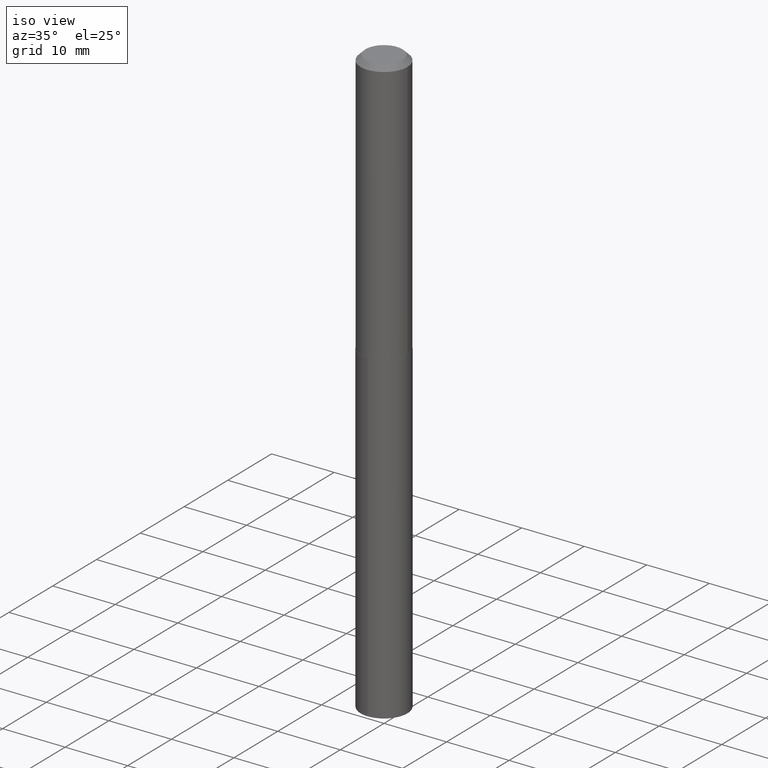
[diagram: clean part render]
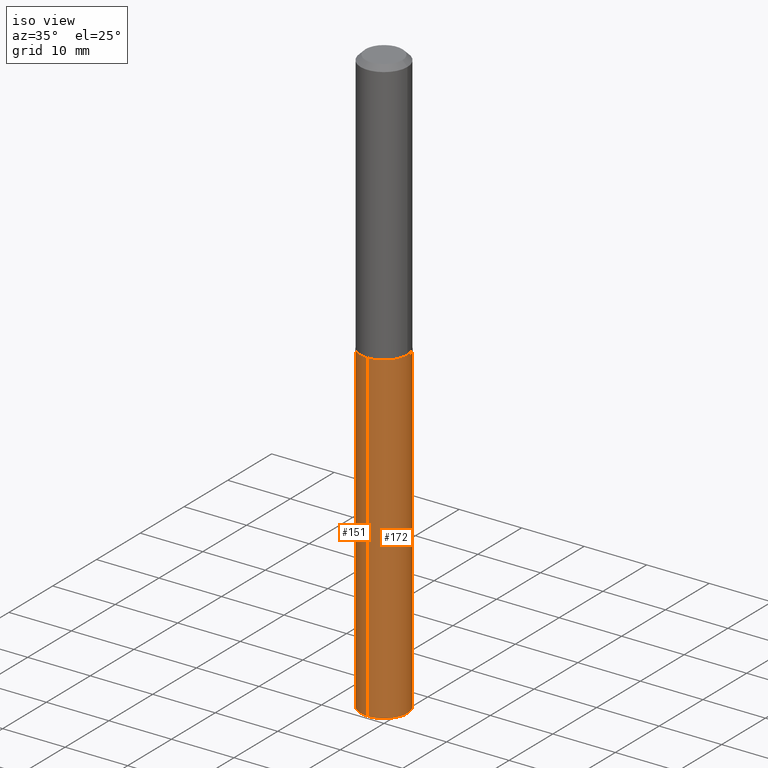
[diagram: same view with one multi-face feature highlighted, each face labeled with its STEP entity id]
A machine part, iso view. The highlighted faces form ONE feature: a constant-radius fillet chain: 2 tangent blend faces with common blend radius 3.7465 mm. The faces share edges in the B-rep.
Their STEP definitions:
[1] entity #151 (Cylinder):
#7 = FACE_OUTER_BOUND ( 'NONE', #385, .T. ) ;
#8 = CIRCLE ( 'NONE', #17, 0.1474999999999999922 ) ;
#17 = AXIS2_PLACEMENT_3D ( 'NONE', #321, #230, #45 ) ;
#20 = LINE ( 'NONE', #378, #369 ) ;
#28 = CYLINDRICAL_SURFACE ( 'NONE', #380, 0.1474999999999999922 ) ;
#36 = VECTOR ( 'NONE', #334, 39.37007874015748143 ) ;
#39 = DIRECTION ( 'NONE',  ( -2.445535589774475660E-29, 3.491385700942126033E-15, 1.000000000000000000 ) ) ;
#42 = CIRCLE ( 'NONE', #226, 0.1474999999999999922 ) ;
#45 = DIRECTION ( 'NONE',  ( -6.982962677686265922E-15, -1.000000000000000000, 3.704200669375272254E-15 ) ) ;
#70 = VERTEX_POINT ( 'NONE', #204 ) ;
#93 = CARTESIAN_POINT ( 'NONE',  ( 4.083932906329178363E-29, -5.830773835868053845E-15, -1.670000000000000151 ) ) ;
#150 = DIRECTION ( 'NONE',  ( -2.445535589774475660E-29, 3.491385700942126033E-15, 1.000000000000000000 ) ) ;
#151 = ADVANCED_FACE ( 'NONE', ( #7 ), #28, .T. ) ;
#162 = DIRECTION ( 'NONE',  ( -6.982962677686265922E-15, -1.000000000000000000, 3.704200669375272254E-15 ) ) ;
#193 = EDGE_CURVE ( 'NONE', #70, #315, #240, .T. ) ;
#197 = ORIENTED_EDGE ( 'NONE', *, *, #305, .F. ) ;
#204 = CARTESIAN_POINT ( 'NONE',  ( -1.029986994958633857E-15, -0.1475000000000130096, -3.710477494116409147 ) ) ;
#226 = AXIS2_PLACEMENT_3D ( 'NONE', #313, #39, #162 ) ;
#227 = DIRECTION ( 'NONE',  ( -2.445535589774475380E-29, 3.491385700942126427E-15, 1.000000000000000000 ) ) ;
#230 = DIRECTION ( 'NONE',  ( -2.445535589774475660E-29, 3.491385700942126033E-15, 1.000000000000000000 ) ) ;
#240 = LINE ( 'NONE', #360, #36 ) ;
#252 = ORIENTED_EDGE ( 'NONE', *, *, #193, .T. ) ;
#259 = ORIENTED_EDGE ( 'NONE', *, *, #285, .T. ) ;
#285 = EDGE_CURVE ( 'NONE', #317, #70, #42, .T. ) ;
#288 = CARTESIAN_POINT ( 'NONE',  ( -1.029986994958683358E-15, -0.1475000000000058209, -1.669999999999999707 ) ) ;
#294 = CARTESIAN_POINT ( 'NONE',  ( 1.048050535246238832E-15, 0.1474999999999941636, -1.670000000000000817 ) ) ;
#296 = ORIENTED_EDGE ( 'NONE', *, *, #358, .F. ) ;
#305 = EDGE_CURVE ( 'NONE', #317, #372, #20, .T. ) ;
#313 = CARTESIAN_POINT ( 'NONE',  ( 9.073993238324695790E-29, -1.295486778192030697E-14, -3.710477494116409591 ) ) ;
#315 = VERTEX_POINT ( 'NONE', #288 ) ;
#316 = CARTESIAN_POINT ( 'NONE',  ( 1.048050535246238832E-15, 0.1474999999999870859, -3.710477494116410480 ) ) ;
#317 = VERTEX_POINT ( 'NONE', #316 ) ;
#321 = CARTESIAN_POINT ( 'NONE',  ( 4.083932906329178363E-29, -5.830773835868053845E-15, -1.670000000000000151 ) ) ;
#334 = DIRECTION ( 'NONE',  ( -2.445535589774475380E-29, 3.491385700942126427E-15, 1.000000000000000000 ) ) ;
#358 = EDGE_CURVE ( 'NONE', #372, #315, #8, .T. ) ;
#360 = CARTESIAN_POINT ( 'NONE',  ( -1.029986994958683358E-15, -0.1475000000000058209, -1.669999999999999707 ) ) ;
#369 = VECTOR ( 'NONE', #227, 39.37007874015748143 ) ;
#372 = VERTEX_POINT ( 'NONE', #294 ) ;
#378 = CARTESIAN_POINT ( 'NONE',  ( 1.048050535246188542E-15, 0.1474999999999941636, -1.670000000000000817 ) ) ;
#380 = AXIS2_PLACEMENT_3D ( 'NONE', #93, #150, #390 ) ;
#385 = EDGE_LOOP ( 'NONE', ( #197, #259, #252, #296 ) ) ;
#390 = DIRECTION ( 'NONE',  ( -6.982962677686265922E-15, -1.000000000000000000, 3.704200669375272254E-15 ) ) ;
[2] entity #172 (Cylinder):
#15 = ORIENTED_EDGE ( 'NONE', *, *, #305, .T. ) ;
#20 = LINE ( 'NONE', #378, #369 ) ;
#36 = VECTOR ( 'NONE', #334, 39.37007874015748143 ) ;
#52 = DIRECTION ( 'NONE',  ( -2.445535589774475660E-29, 3.491385700942126033E-15, 1.000000000000000000 ) ) ;
#66 = CIRCLE ( 'NONE', #278, 0.1474999999999999922 ) ;
#70 = VERTEX_POINT ( 'NONE', #204 ) ;
#73 = EDGE_LOOP ( 'NONE', ( #76, #15, #219, #355 ) ) ;
#75 = EDGE_CURVE ( 'NONE', #70, #317, #66, .T. ) ;
#76 = ORIENTED_EDGE ( 'NONE', *, *, #75, .T. ) ;
#84 = CARTESIAN_POINT ( 'NONE',  ( 4.083932906329178363E-29, -5.830773835868053845E-15, -1.670000000000000151 ) ) ;
#97 = DIRECTION ( 'NONE',  ( -2.445535589774475660E-29, 3.491385700942126033E-15, 1.000000000000000000 ) ) ;
#123 = CARTESIAN_POINT ( 'NONE',  ( 4.083932906329178363E-29, -5.830773835868053845E-15, -1.670000000000000151 ) ) ;
#142 = AXIS2_PLACEMENT_3D ( 'NONE', #84, #97, #214 ) ;
#169 = CIRCLE ( 'NONE', #287, 0.1474999999999999922 ) ;
#172 = ADVANCED_FACE ( 'NONE', ( #244 ), #362, .T. ) ;
#177 = EDGE_CURVE ( 'NONE', #315, #372, #169, .T. ) ;
#178 = DIRECTION ( 'NONE',  ( -6.982962677686265922E-15, -1.000000000000000000, 3.704200669375272254E-15 ) ) ;
#193 = EDGE_CURVE ( 'NONE', #70, #315, #240, .T. ) ;
#204 = CARTESIAN_POINT ( 'NONE',  ( -1.029986994958633857E-15, -0.1475000000000130096, -3.710477494116409147 ) ) ;
#212 = DIRECTION ( 'NONE',  ( -2.445535589774475660E-29, 3.491385700942126033E-15, 1.000000000000000000 ) ) ;
#214 = DIRECTION ( 'NONE',  ( -6.982962677686265922E-15, -1.000000000000000000, 3.704200669375272254E-15 ) ) ;
#219 = ORIENTED_EDGE ( 'NONE', *, *, #177, .F. ) ;
#227 = DIRECTION ( 'NONE',  ( -2.445535589774475380E-29, 3.491385700942126427E-15, 1.000000000000000000 ) ) ;
#240 = LINE ( 'NONE', #360, #36 ) ;
#244 = FACE_OUTER_BOUND ( 'NONE', #73, .T. ) ;
#278 = AXIS2_PLACEMENT_3D ( 'NONE', #324, #52, #178 ) ;
#287 = AXIS2_PLACEMENT_3D ( 'NONE', #123, #212, #306 ) ;
#288 = CARTESIAN_POINT ( 'NONE',  ( -1.029986994958683358E-15, -0.1475000000000058209, -1.669999999999999707 ) ) ;
#294 = CARTESIAN_POINT ( 'NONE',  ( 1.048050535246238832E-15, 0.1474999999999941636, -1.670000000000000817 ) ) ;
#305 = EDGE_CURVE ( 'NONE', #317, #372, #20, .T. ) ;
#306 = DIRECTION ( 'NONE',  ( -6.982962677686265922E-15, -1.000000000000000000, 3.704200669375272254E-15 ) ) ;
#315 = VERTEX_POINT ( 'NONE', #288 ) ;
#316 = CARTESIAN_POINT ( 'NONE',  ( 1.048050535246238832E-15, 0.1474999999999870859, -3.710477494116410480 ) ) ;
#317 = VERTEX_POINT ( 'NONE', #316 ) ;
#324 = CARTESIAN_POINT ( 'NONE',  ( 9.073993238324695790E-29, -1.295486778192030697E-14, -3.710477494116409591 ) ) ;
#334 = DIRECTION ( 'NONE',  ( -2.445535589774475380E-29, 3.491385700942126427E-15, 1.000000000000000000 ) ) ;
#355 = ORIENTED_EDGE ( 'NONE', *, *, #193, .F. ) ;
#360 = CARTESIAN_POINT ( 'NONE',  ( -1.029986994958683358E-15, -0.1475000000000058209, -1.669999999999999707 ) ) ;
#362 = CYLINDRICAL_SURFACE ( 'NONE', #142, 0.1474999999999999922 ) ;
#369 = VECTOR ( 'NONE', #227, 39.37007874015748143 ) ;
#372 = VERTEX_POINT ( 'NONE', #294 ) ;
#378 = CARTESIAN_POINT ( 'NONE',  ( 1.048050535246188542E-15, 0.1474999999999941636, -1.670000000000000817 ) ) ;